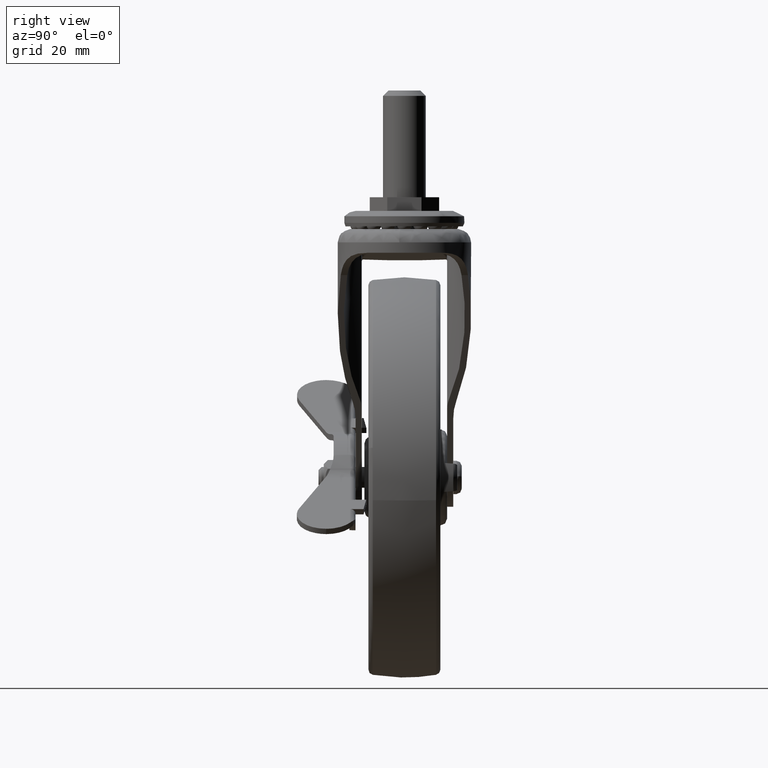
[diagram: clean part render]
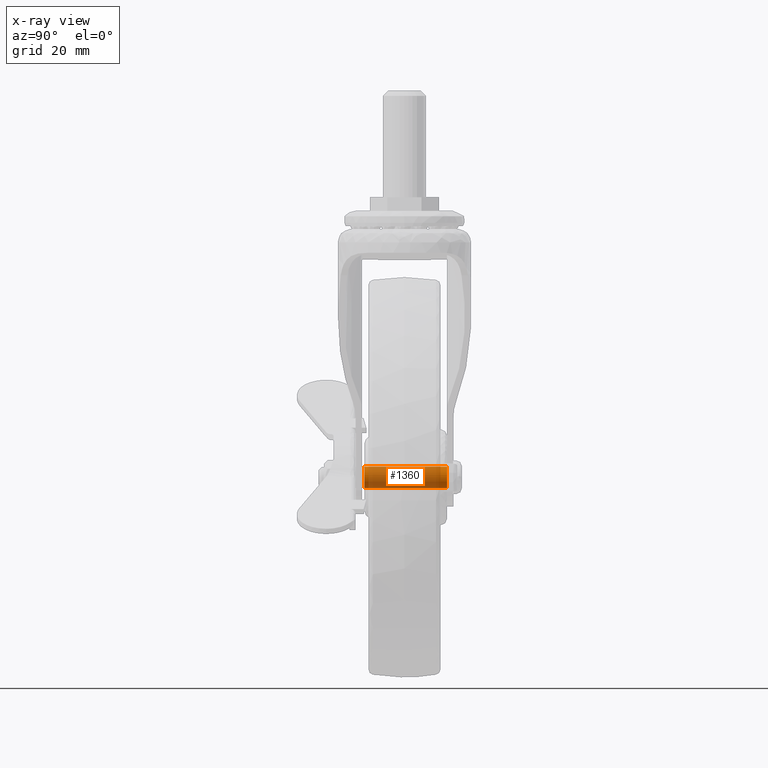
[diagram: x-ray — body ghosted, one internal face saturated and labeled with its STEP entity id]
A machine part, right view, then the same camera in x-ray: the body is ghosted and one INTERNAL B-rep face — a face not visible from any outside direction — is saturated and labeled: STEP entity #1360.
In plain terms, the highlighted face is a freeform B-spline surface patch.
Its self-contained STEP definition (entity closure, byte-faithful):
#1218=CARTESIAN_POINT('',(-3.054222571761859,16.774999999999999,-2.582968153528100));
#1219=CARTESIAN_POINT('',(-2.980299132926059,16.775000000000009,-2.670378691349157));
#1220=CARTESIAN_POINT('',(-2.901497484049150,16.774999999999999,-2.753418302775013));
#1221=CARTESIAN_POINT('',(-0.148079181274134,16.775000000000006,-5.654915786824163));
#1222=CARTESIAN_POINT('',(2.753418302775015,16.774999999999999,-2.901497484049148));
#1223=CARTESIAN_POINT('',(5.654915786824165,16.775000000000006,-0.148079181274133));
#1224=CARTESIAN_POINT('',(2.901497484049150,16.774999999999999,2.753418302775017));
#1225=CARTESIAN_POINT('',(0.148079181274134,16.775000000000006,5.654915786824168));
#1226=CARTESIAN_POINT('',(-2.753418302775015,16.774999999999999,2.901497484049151));
#1227=CARTESIAN_POINT('',(-3.054222571761859,-15.794375000000000,-2.582968153528100));
#1228=CARTESIAN_POINT('',(-2.980299132926059,-15.794374999999999,-2.670378691349157));
#1229=CARTESIAN_POINT('',(-2.901497484049150,-15.794375000000000,-2.753418302775013));
#1230=CARTESIAN_POINT('',(-0.148079181274134,-15.794375000000004,-5.654915786824163));
#1231=CARTESIAN_POINT('',(2.753418302775015,-15.794375000000000,-2.901497484049148));
#1232=CARTESIAN_POINT('',(5.654915786824165,-15.794375000000004,-0.148079181274133));
#1233=CARTESIAN_POINT('',(2.901497484049150,-15.794375000000000,2.753418302775017));
#1234=CARTESIAN_POINT('',(0.148079181274134,-15.794375000000004,5.654915786824168));
#1235=CARTESIAN_POINT('',(-2.753418302775015,-15.794375000000000,2.901497484049151));
#1243=(BOUNDED_SURFACE()B_SPLINE_SURFACE(2,1,((#1218,#1227),(#1219,#1228),(#1220,#1229),(#1221,#1230),(#1222,#1231),(#1223,#1232),(#1224,#1233),(#1225,#1234),(#1226,#1235)),.UNSPECIFIED.,.F.,.F.,.U.)B_SPLINE_SURFACE_WITH_KNOTS((3,2,2,2,3),(2,2),(0.0,0.265096679918781,6.892513677888300,13.519930675857820,20.147347673827340),(0.0,32.569375000000008),.UNSPECIFIED.)GEOMETRIC_REPRESENTATION_ITEM()RATIONAL_B_SPLINE_SURFACE(((0.977505800795127,0.977505800795127),(0.988284271247462,0.988284271247462),(1.0,1.0),(0.707106781186548,0.707106781186548),(1.0,1.0),(0.707106781186548,0.707106781186548),(1.0,1.0),(0.707106781186548,0.707106781186548),(1.0,1.0)))REPRESENTATION_ITEM('')SURFACE());
#1244=CARTESIAN_POINT('',(-3.054223206081465,16.000000000001648,-2.582968945471056));
#1245=VERTEX_POINT('',#1244);
#1246=CARTESIAN_POINT('',(0.0,16.0,-3.999999999999998));
#1247=VERTEX_POINT('',#1246);
#1248=CARTESIAN_POINT('',(-3.054223206081465,16.000000000001648,-2.582968945471056));
#1249=CARTESIAN_POINT('',(-2.704020411394320,16.000000000001499,-2.998099507936387));
#1250=CARTESIAN_POINT('',(-1.976481305500808,16.000000000000941,-3.567363806391743));
#1251=CARTESIAN_POINT('',(-0.868806246065211,16.000000000000661,-3.941409626575925));
#1252=CARTESIAN_POINT('',(-0.253391847418411,15.999999999999890,-4.000006805081801));
#1253=CARTESIAN_POINT('',(0.0,16.0,-3.999999999999998));
#1254=B_SPLINE_CURVE_WITH_KNOTS('',3,(#1248,#1249,#1250,#1251,#1252,#1253),.UNSPECIFIED.,.F.,.U.,(4,1,1,4),(0.000000115103073,1.629073161928403,2.715090788412637,3.475313433566644),.UNSPECIFIED.);
#1255=EDGE_CURVE('',#1245,#1247,#1254,.T.);
#1256=ORIENTED_EDGE('',*,*,#1255,.F.);
#1257=CARTESIAN_POINT('',(-3.054223207687391,-15.0,-2.582968943572134));
#1258=VERTEX_POINT('',#1257);
#1259=CARTESIAN_POINT('',(-3.054223206081465,16.000000000001648,-2.582968945471056));
#1260=CARTESIAN_POINT('',(-3.054223207687391,-15.0,-2.582968943572134));
#1261=QUASI_UNIFORM_CURVE('',1,(#1259,#1260),.UNSPECIFIED.,.F.,.U.);
#1262=EDGE_CURVE('',#1245,#1258,#1261,.T.);
#1263=ORIENTED_EDGE('',*,*,#1262,.T.);
#1264=CARTESIAN_POINT('',(0.0,-15.0,-3.999999999999998));
#1265=VERTEX_POINT('',#1264);
#1266=CARTESIAN_POINT('',(-3.054223207687391,-15.0,-2.582968943572134));
#1267=CARTESIAN_POINT('',(-2.704017831197791,-15.000000000000030,-2.998098528600622));
#1268=CARTESIAN_POINT('',(-1.976486183150880,-14.999999999999931,-3.567363917495836));
#1269=CARTESIAN_POINT('',(-0.868800093517074,-15.000000000000110,-3.941410861909224));
#1270=CARTESIAN_POINT('',(-0.253397620746970,-14.999999999999879,-4.000006223897901));
#1271=CARTESIAN_POINT('',(0.0,-15.0,-3.999999999999998));
#1272=B_SPLINE_CURVE_WITH_KNOTS('',3,(#1266,#1267,#1268,#1269,#1270,#1271),.UNSPECIFIED.,.F.,.U.,(4,1,1,4),(0.000000115103167,1.629073163094355,2.715090790355767,3.475313436053813),.UNSPECIFIED.);
#1273=EDGE_CURVE('',#1258,#1265,#1272,.T.);
#1274=ORIENTED_EDGE('',*,*,#1273,.T.);
#1275=CARTESIAN_POINT('',(3.999999999997961,-15.0,0.000004038979566));
#1276=VERTEX_POINT('',#1275);
#1277=CARTESIAN_POINT('',(0.0,-15.0,-3.999999999999998));
#1278=CARTESIAN_POINT('',(0.359979857307193,-14.999999999999989,-4.000107230236057));
#1279=CARTESIAN_POINT('',(0.981688213241446,-15.000000000000020,-3.915471560741450));
#1280=CARTESIAN_POINT('',(1.932856851155340,-14.999999999999989,-3.548693175052176));
#1281=CARTESIAN_POINT('',(2.717142665976119,-15.000000000000060,-2.996299527075684));
#1282=CARTESIAN_POINT('',(3.353033327593754,-14.999999999999950,-2.240419862688496));
#1283=CARTESIAN_POINT('',(3.853504878349116,-15.000000000000060,-1.276009071494005));
#1284=CARTESIAN_POINT('',(4.000446469061918,-14.999999999999980,-0.490942656397943));
#1285=CARTESIAN_POINT('',(3.999999999997961,-15.0,0.000004038979566));
#1286=B_SPLINE_CURVE_WITH_KNOTS('',3,(#1277,#1278,#1279,#1280,#1281,#1282,#1283,#1284,#1285),.UNSPECIFIED.,.F.,.U.,(4,1,1,1,1,1,4),(0.000000342152227,1.079942213240567,1.865385485126052,3.043541183976962,3.927045538611610,4.810689119252809,6.283345253851340),.UNSPECIFIED.);
#1287=EDGE_CURVE('',#1265,#1276,#1286,.T.);
#1288=ORIENTED_EDGE('',*,*,#1287,.T.);
#1289=CARTESIAN_POINT('',(0.0,-15.0,4.000000000000002));
#1290=VERTEX_POINT('',#1289);
#1291=CARTESIAN_POINT('',(3.999999999997961,-15.0,0.000004038979566));
#1292=CARTESIAN_POINT('',(4.000122446635275,-15.0,0.359990987288968));
#1293=CARTESIAN_POINT('',(3.906604003628242,-15.0,1.047146321780262));
#1294=CARTESIAN_POINT('',(3.540684654387714,-15.0,1.930572189478469));
#1295=CARTESIAN_POINT('',(2.991600990393430,-15.000000000000011,2.710261081829203));
#1296=CARTESIAN_POINT('',(2.298908513937684,-14.999999999999980,3.322746278099293));
#1297=CARTESIAN_POINT('',(1.275996285914189,-15.0,3.853494276460184));
#1298=CARTESIAN_POINT('',(0.490951485957902,-15.000000000000030,4.000448809761465));
#1299=CARTESIAN_POINT('',(0.0,-15.0,4.000000000000002));
#1300=B_SPLINE_CURVE_WITH_KNOTS('',3,(#1291,#1292,#1293,#1294,#1295,#1296,#1297,#1298,#1299),.UNSPECIFIED.,.F.,.U.,(4,1,1,1,1,1,4),(0.000000347682159,1.079941436133353,2.061723631040462,2.847210489226062,3.927042691609585,4.810685631865221,6.283340700866420),.UNSPECIFIED.);
#1301=EDGE_CURVE('',#1276,#1290,#1300,.T.);
#1302=ORIENTED_EDGE('',*,*,#1301,.T.);
#1303=CARTESIAN_POINT('',(-2.753417609019610,-15.0,2.901496752273124));
#1304=VERTEX_POINT('',#1303);
#1305=CARTESIAN_POINT('',(0.0,-15.0,4.000000000000002));
#1306=CARTESIAN_POINT('',(-0.347985892983221,-14.999999999999989,4.000110044993625));
#1307=CARTESIAN_POINT('',(-1.012250279157513,-15.000000000000011,3.912756534360881));
#1308=CARTESIAN_POINT('',(-1.959111100044294,-15.000000000000020,3.535016215765885));
#1309=CARTESIAN_POINT('',(-2.501072960191911,-14.999999999999989,3.141115396231654));
#1310=CARTESIAN_POINT('',(-2.753417609019610,-15.0,2.901496752273124));
#1311=B_SPLINE_CURVE_WITH_KNOTS('',3,(#1305,#1306,#1307,#1308,#1309,#1310),.UNSPECIFIED.,.F.,.U.,(4,1,1,4),(0.000000084487371,1.043952955998433,1.992990856630535,3.036943728043067),.UNSPECIFIED.);
#1312=EDGE_CURVE('',#1290,#1304,#1311,.T.);
#1313=ORIENTED_EDGE('',*,*,#1312,.T.);
#1314=CARTESIAN_POINT('',(-2.753417609019610,16.0,2.901496752273124));
#1315=VERTEX_POINT('',#1314);
#1316=CARTESIAN_POINT('',(-2.753417609019610,16.0,2.901496752273124));
#1317=CARTESIAN_POINT('',(-2.753417609019610,-15.0,2.901496752273124));
#1318=QUASI_UNIFORM_CURVE('',1,(#1316,#1317),.UNSPECIFIED.,.F.,.U.);
#1319=EDGE_CURVE('',#1315,#1304,#1318,.T.);
#1320=ORIENTED_EDGE('',*,*,#1319,.F.);
#1321=CARTESIAN_POINT('',(0.0,16.0,4.000000000000002));
#1322=VERTEX_POINT('',#1321);
#1323=CARTESIAN_POINT('',(0.0,16.0,4.000000000000002));
#1324=CARTESIAN_POINT('',(-0.347985892983221,16.0,4.000110044993623));
#1325=CARTESIAN_POINT('',(-1.012250279157512,16.0,3.912756534360881));
#1326=CARTESIAN_POINT('',(-1.959111100044294,16.000000000000028,3.535016215765886));
#1327=CARTESIAN_POINT('',(-2.501072960191911,15.999999999999989,3.141115396231655));
#1328=CARTESIAN_POINT('',(-2.753417609019610,16.0,2.901496752273124));
#1329=B_SPLINE_CURVE_WITH_KNOTS('',3,(#1323,#1324,#1325,#1326,#1327,#1328),.UNSPECIFIED.,.F.,.U.,(4,1,1,4),(0.000000084487371,1.043952955998433,1.992990856630535,3.036943728043067),.UNSPECIFIED.);
#1330=EDGE_CURVE('',#1322,#1315,#1329,.T.);
#1331=ORIENTED_EDGE('',*,*,#1330,.F.);
#1332=CARTESIAN_POINT('',(3.999999999997961,16.0,0.000004038979566));
#1333=VERTEX_POINT('',#1332);
#1334=CARTESIAN_POINT('',(3.999999999997961,16.0,0.000004038979566));
#1335=CARTESIAN_POINT('',(4.000072957867848,16.0,0.359974520425583));
#1336=CARTESIAN_POINT('',(3.893409314751156,15.999999999999980,1.145382776999664));
#1337=CARTESIAN_POINT('',(3.396627985825887,16.000000000000071,2.230195719304950));
#1338=CARTESIAN_POINT('',(2.685604828185477,15.999999999999890,3.014476184293020));
#1339=CARTESIAN_POINT('',(1.954231608322180,16.000000000000199,3.516074357347963));
#1340=CARTESIAN_POINT('',(1.112511083534030,15.999999999999840,3.889294723657007));
#1341=CARTESIAN_POINT('',(0.425450252305579,16.000000000000110,4.000230390581123));
#1342=CARTESIAN_POINT('',(0.0,16.0,4.000000000000002));
#1343=B_SPLINE_CURVE_WITH_KNOTS('',3,(#1334,#1335,#1336,#1337,#1338,#1339,#1340,#1341,#1342),.UNSPECIFIED.,.F.,.U.,(4,1,1,1,1,1,4),(0.000000347682159,1.079941436133353,2.356297761065649,3.534323108337668,4.221617367800680,5.007054500063495,6.283340700866420),.UNSPECIFIED.);
#1344=EDGE_CURVE('',#1333,#1322,#1343,.T.);
#1345=ORIENTED_EDGE('',*,*,#1344,.F.);
#1346=CARTESIAN_POINT('',(0.0,16.0,-3.999999999999998));
#1347=CARTESIAN_POINT('',(0.359979852379255,15.999999999999989,-4.000107218289151));
#1348=CARTESIAN_POINT('',(0.981688553925317,16.000000000000021,-3.915471517544389));
#1349=CARTESIAN_POINT('',(1.932854860801848,15.999999999999989,-3.548693579424927));
#1350=CARTESIAN_POINT('',(2.717147396569428,16.000000000000050,-2.996298193702179));
#1351=CARTESIAN_POINT('',(3.353028904750145,15.999999999999959,-2.240423280082646));
#1352=CARTESIAN_POINT('',(3.853504889302439,16.000000000000050,-1.276002531258440));
#1353=CARTESIAN_POINT('',(4.000447277912175,15.999999999999980,-0.490945275653110));
#1354=CARTESIAN_POINT('',(3.999999999997961,16.0,0.000004038979566));
#1355=B_SPLINE_CURVE_WITH_KNOTS('',3,(#1346,#1347,#1348,#1349,#1350,#1351,#1352,#1353,#1354),.UNSPECIFIED.,.F.,.U.,(4,1,1,1,1,1,4),(0.000000342152227,1.079942213240567,1.865385485126052,3.043541183976962,3.927045538611610,4.810689119252809,6.283345253851340),.UNSPECIFIED.);
#1356=EDGE_CURVE('',#1247,#1333,#1355,.T.);
#1357=ORIENTED_EDGE('',*,*,#1356,.F.);
#1358=EDGE_LOOP('',(#1256,#1263,#1274,#1288,#1302,#1313,#1320,#1331,#1345,#1357));
#1359=FACE_OUTER_BOUND('',#1358,.T.);
#1360=ADVANCED_FACE('',(#1359),#1243,.F.);